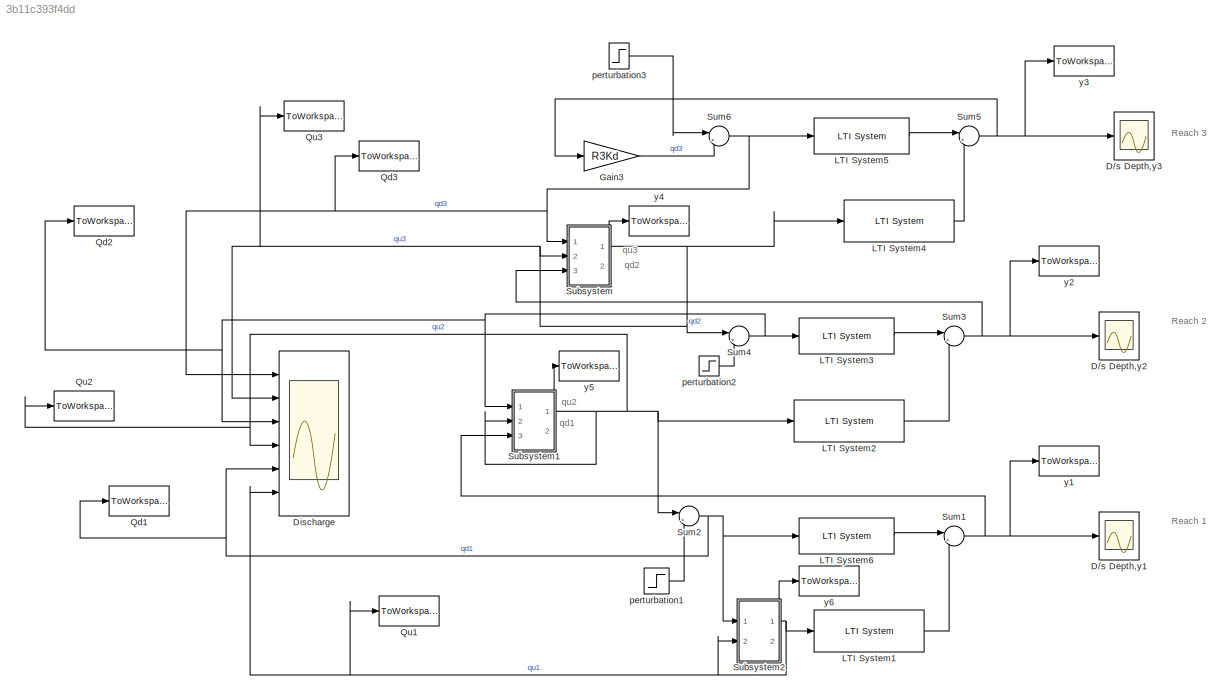
MODEL slx_3b11c393f4dd
KIND model
CONFIG AbsTol = auto
CONFIG EnableMultiTasking = off
CONFIG FixedStep = auto
CONFIG MaxStep = auto
CONFIG MinStep = auto
CONFIG RelTol = 1e-3
CONFIG SampleTimeConstraint = Unconstrained
CONFIG Solver = VariableStepAuto
CONFIG SolverName = VariableStepAuto
CONFIG StartTime = 0.0
CONFIG StopTime = 250000
BLOCK [Scope] D//s Depth,y1
  Floating = off
  NumInputPorts = 1
  Ports = [1]
  ScopeSpecificationString = Simulink.scopes.TimeScopeBlockCfg('CurrentConfiguration', extmgr.ConfigurationSet(extmgr.Configuration('Core','General UI',true),extmgr.Configuration('Core','Source UI',true),extmgr.Configuration('Sources','WiredSimulink',true,'DataLoggingSaveFormat','StructureWithTime','DataLoggingDecimation','1','DataLoggingDecimateData',true),extmgr.Configuration('Visuals','Time Domain',true,'SerializedDisplays...<+1547ch>
BLOCK [Scope] D//s Depth,y2
  Floating = off
  NumInputPorts = 1
  Ports = [1]
  ScopeSpecificationString = Simulink.scopes.TimeScopeBlockCfg('CurrentConfiguration', extmgr.ConfigurationSet(extmgr.Configuration('Core','General UI',true),extmgr.Configuration('Core','Source UI',true),extmgr.Configuration('Sources','WiredSimulink',true,'DataLoggingSaveFormat','StructureWithTime','DataLoggingDecimation','1','DataLoggingDecimateData',true,'DataLoggingVariableName','ScopeData1'),extmgr.Configuration('Visuals'...<+1584ch>
BLOCK [Scope] D//s Depth,y3
  Floating = off
  NumInputPorts = 1
  Ports = [1]
  ScopeSpecificationString = Simulink.scopes.TimeScopeBlockCfg('CurrentConfiguration', extmgr.ConfigurationSet(extmgr.Configuration('Core','General UI',true),extmgr.Configuration('Core','Source UI',true),extmgr.Configuration('Sources','WiredSimulink',true,'DataLoggingSaveFormat','StructureWithTime','DataLoggingDecimation','1','DataLoggingDecimateData',true,'DataLoggingVariableName','ScopeData2'),extmgr.Configuration('Visuals'...<+1586ch>
BLOCK [Scope] Discharge
  Floating = off
  NumInputPorts = 6
  Ports = [6]
  ScopeSpecificationString = Simulink.scopes.TimeScopeBlockCfg('CurrentConfiguration', extmgr.ConfigurationSet(extmgr.Configuration('Core','General UI',true,'DisplayFullSourceName',true),extmgr.Configuration('Core','Source UI',true),extmgr.Configuration('Sources','WiredSimulink',true,'DataLoggingSaveFormat','StructureWithTime','DataLoggingDecimation','1','DataLoggingDecimateData',true,'DataLoggingVariableName','ScopeData1'),e...<+4985ch>
BLOCK [Gain] Gain3
  Gain = R3Kd
BLOCK [Reference] LTI System1  REF=cstblocks/LTI System
  Ports = [1, 1]
  SourceBlock = cstblocks/LTI System
  SourceProductBaseCode = CT
  SourceType = LTI Block
BLOCK [Reference] LTI System2  REF=cstblocks/LTI System
  Ports = [1, 1]
  SourceBlock = cstblocks/LTI System
  SourceProductBaseCode = CT
  SourceType = LTI Block
BLOCK [Reference] LTI System3  REF=cstblocks/LTI System
  Ports = [1, 1]
  SourceBlock = cstblocks/LTI System
  SourceProductBaseCode = CT
  SourceType = LTI Block
BLOCK [Reference] LTI System4  REF=cstblocks/LTI System
  Ports = [1, 1]
  SourceBlock = cstblocks/LTI System
  SourceProductBaseCode = CT
  SourceType = LTI Block
BLOCK [Reference] LTI System5  REF=cstblocks/LTI System
  Ports = [1, 1]
  SourceBlock = cstblocks/LTI System
  SourceProductBaseCode = CT
  SourceType = LTI Block
BLOCK [Reference] LTI System6  REF=cstblocks/LTI System
  Ports = [1, 1]
  SourceBlock = cstblocks/LTI System
  SourceProductBaseCode = CT
  SourceType = LTI Block
BLOCK [ToWorkspace] Qd1
  FixptAsFi = on
  MaxDataPoints = inf
  Ports = [1]
  SampleTime = -1
  SaveFormat = Timeseries
  VariableName = Qd1
BLOCK [ToWorkspace] Qd2
  FixptAsFi = on
  MaxDataPoints = inf
  Ports = [1]
  SampleTime = -1
  SaveFormat = Timeseries
  VariableName = Qd2
BLOCK [ToWorkspace] Qd3
  FixptAsFi = on
  MaxDataPoints = inf
  Ports = [1]
  SampleTime = -1
  SaveFormat = Timeseries
  VariableName = Qd3
BLOCK [ToWorkspace] Qu1
  FixptAsFi = on
  MaxDataPoints = inf
  Ports = [1]
  SampleTime = -1
  SaveFormat = Timeseries
  VariableName = Qu1
BLOCK [ToWorkspace] Qu2
  FixptAsFi = on
  MaxDataPoints = inf
  Ports = [1]
  SampleTime = -1
  SaveFormat = Timeseries
  VariableName = Qu2
BLOCK [ToWorkspace] Qu3
  FixptAsFi = on
  MaxDataPoints = inf
  Ports = [1]
  SampleTime = -1
  SaveFormat = Timeseries
  VariableName = Qu3
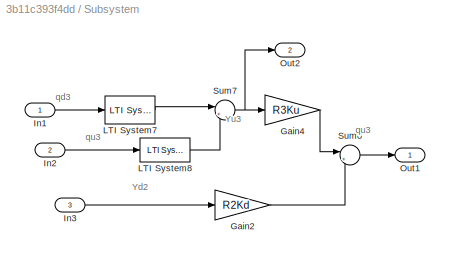
BLOCK [SubSystem] Subsystem
  PortSchema = {"entries":[{"content":{"sides":[{"content":{"connectorIds":["In1","In2","In3"]},"type":"ConnectorPlacement.EquallySpacedRectSide","uuid":"5966c642-27f1-4d1c-9c21-5a17e9a6fd4f"},{"content":{"connectorIds":["Out1"],"side":"RIGHT"},"type":"ConnectorPlacement.EquallySpacedRectSide","uuid":"42c3a355-b1fe-4101-8b09-079b8b81b2d6"},{"content":{"connectorIds":["Out2"],"side":"TOP"},"type":"ConnectorPlacem...<+260ch>
  Ports = [3, 2]
  RequestExecContextInheritance = off
BLOCK [Gain] Subsystem/Gain2
  Gain = R2Kd
BLOCK [Gain] Subsystem/Gain4
  Gain = R3Ku
BLOCK [Inport] Subsystem/In1
BLOCK [Inport] Subsystem/In2
  Port = 2
BLOCK [Inport] Subsystem/In3
  Port = 3
BLOCK [Reference] Subsystem/LTI System7  REF=cstblocks/LTI System
  Ports = [1, 1]
  SourceBlock = cstblocks/LTI System
  SourceProductBaseCode = CT
  SourceType = LTI Block
BLOCK [Reference] Subsystem/LTI System8  REF=cstblocks/LTI System
  Ports = [1, 1]
  SourceBlock = cstblocks/LTI System
  SourceProductBaseCode = CT
  SourceType = LTI Block
BLOCK [Outport] Subsystem/Out1
BLOCK [Outport] Subsystem/Out2
  Port = 2
BLOCK [Sum] Subsystem/Sum7
  Inputs = |++
  Ports = [2, 1]
BLOCK [Sum] Subsystem/Sum8
  Inputs = |++
  Ports = [2, 1]
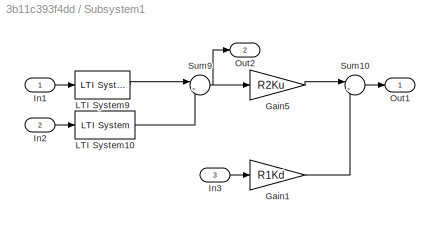
BLOCK [SubSystem] Subsystem1
  PortSchema = {"entries":[{"content":{"sides":[{"content":{"connectorIds":["In1","In2","In3"]},"type":"ConnectorPlacement.EquallySpacedRectSide","uuid":"5966c642-27f1-4d1c-9c21-5a17e9a6fd4f"},{"content":{"connectorIds":["Out1"],"side":"RIGHT"},"type":"ConnectorPlacement.EquallySpacedRectSide","uuid":"42c3a355-b1fe-4101-8b09-079b8b81b2d6"},{"content":{"connectorIds":["Out2"],"side":"TOP"},"type":"ConnectorPlacem...<+260ch>
  Ports = [3, 2]
  RequestExecContextInheritance = off
BLOCK [Gain] Subsystem1/Gain1
  Gain = R1Kd
BLOCK [Gain] Subsystem1/Gain5
  Gain = R2Ku
BLOCK [Inport] Subsystem1/In1
BLOCK [Inport] Subsystem1/In2
  Port = 2
BLOCK [Inport] Subsystem1/In3
  Port = 3
BLOCK [Reference] Subsystem1/LTI System10  REF=cstblocks/LTI System
  Ports = [1, 1]
  SourceBlock = cstblocks/LTI System
  SourceProductBaseCode = CT
  SourceType = LTI Block
BLOCK [Reference] Subsystem1/LTI System9  REF=cstblocks/LTI System
  Ports = [1, 1]
  SourceBlock = cstblocks/LTI System
  SourceProductBaseCode = CT
  SourceType = LTI Block
BLOCK [Outport] Subsystem1/Out1
BLOCK [Outport] Subsystem1/Out2
  Port = 2
BLOCK [Sum] Subsystem1/Sum10
  Inputs = |++
  Ports = [2, 1]
BLOCK [Sum] Subsystem1/Sum9
  Inputs = |++
  Ports = [2, 1]
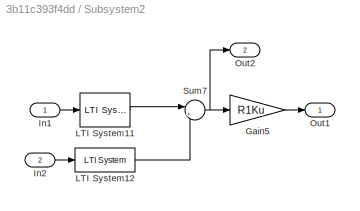
BLOCK [SubSystem] Subsystem2
  PortSchema = {"entries":[{"content":{"sides":[{"content":{"connectorIds":["In1","In2"]},"type":"ConnectorPlacement.EquallySpacedRectSide","uuid":"4285bcff-0b6c-4803-aa7e-52336b14ade4"},{"content":{"connectorIds":["Out1"],"side":"RIGHT"},"type":"ConnectorPlacement.EquallySpacedRectSide","uuid":"ef054825-743c-42b7-be9a-02fce2cfa877"},{"content":{"connectorIds":["Out2"],"side":"TOP"},"type":"ConnectorPlacement.Eq...<+254ch>
  Ports = [2, 2]
  RequestExecContextInheritance = off
BLOCK [Gain] Subsystem2/Gain5
  Gain = R1Ku
BLOCK [Inport] Subsystem2/In1
BLOCK [Inport] Subsystem2/In2
  Port = 2
BLOCK [Reference] Subsystem2/LTI System11  REF=cstblocks/LTI System
  Ports = [1, 1]
  SourceBlock = cstblocks/LTI System
  SourceProductBaseCode = CT
  SourceType = LTI Block
BLOCK [Reference] Subsystem2/LTI System12  REF=cstblocks/LTI System
  Ports = [1, 1]
  SourceBlock = cstblocks/LTI System
  SourceProductBaseCode = CT
  SourceType = LTI Block
BLOCK [Outport] Subsystem2/Out1
BLOCK [Outport] Subsystem2/Out2
  Port = 2
BLOCK [Sum] Subsystem2/Sum7
  Inputs = |++
  Ports = [2, 1]
BLOCK [Sum] Sum1
  Inputs = |++
  Ports = [2, 1]
BLOCK [Sum] Sum2
  Inputs = |++
  Ports = [2, 1]
BLOCK [Sum] Sum3
  Inputs = |++
  Ports = [2, 1]
BLOCK [Sum] Sum4
  Inputs = |++
  Ports = [2, 1]
BLOCK [Sum] Sum5
  Inputs = |++
  Ports = [2, 1]
BLOCK [Sum] Sum6
  Inputs = |++
  Ports = [2, 1]
BLOCK [Step] perturbation1
  After = 0
  SampleTime = 0
  Time = 1200
BLOCK [Step] perturbation2
  SampleTime = 0
  Time = 1200
BLOCK [Step] perturbation3
  After = 0
  SampleTime = 0
  Time = 1200
BLOCK [ToWorkspace] y1
  FixptAsFi = on
  MaxDataPoints = inf
  Ports = [1]
  SampleTime = -1
  SaveFormat = Timeseries
  VariableName = y1d
BLOCK [ToWorkspace] y2
  FixptAsFi = on
  MaxDataPoints = inf
  Ports = [1]
  SampleTime = -1
  SaveFormat = Timeseries
  VariableName = y2d
BLOCK [ToWorkspace] y3
  FixptAsFi = on
  MaxDataPoints = inf
  Ports = [1]
  SampleTime = -1
  SaveFormat = Timeseries
  VariableName = y3d
BLOCK [ToWorkspace] y4
  FixptAsFi = on
  MaxDataPoints = inf
  Ports = [1]
  SampleTime = -1
  SaveFormat = Timeseries
  VariableName = Y3u
BLOCK [ToWorkspace] y5
  FixptAsFi = on
  MaxDataPoints = inf
  Ports = [1]
  SampleTime = -1
  SaveFormat = Timeseries
  VariableName = Y2u
BLOCK [ToWorkspace] y6
  FixptAsFi = on
  MaxDataPoints = inf
  Ports = [1]
  SampleTime = -1
  SaveFormat = Timeseries
  VariableName = Y1u
ANNOTATION (root): Reach 1
ANNOTATION (root): Reach 2
ANNOTATION (root): Reach 3
ANNOTATION (root): qd1
ANNOTATION (root): qd2
ANNOTATION (root): qu2
ANNOTATION (root): qu3
ANNOTATION Subsystem: Yd2
ANNOTATION Subsystem: Yu3
ANNOTATION Subsystem: qd3
ANNOTATION Subsystem: qu3
LINE Gain3:1 -> Sum6:2
LINE LTI System1:1 -> Sum1:2
LINE LTI System2:1 -> Sum3:2
LINE LTI System3:1 -> Sum3:1
LINE LTI System4:1 -> Sum5:2
LINE LTI System5:1 -> Sum5:1
LINE LTI System6:1 -> Sum1:1
LINE Subsystem/Gain2:1 -> Subsystem/Sum8:2
LINE Subsystem/Gain4:1 -> Subsystem/Sum8:1
LINE Subsystem/In1:1 -> Subsystem/LTI System7:1
LINE Subsystem/In2:1 -> Subsystem/LTI System8:1
LINE Subsystem/In3:1 -> Subsystem/Gain2:1
LINE Subsystem/LTI System7:1 -> Subsystem/Sum7:1
LINE Subsystem/LTI System8:1 -> Subsystem/Sum7:2
NET Subsystem/Sum7:1 -> Subsystem/Gain4:1, Subsystem/Out2:1
LINE Subsystem/Sum8:1 -> Subsystem/Out1:1
LINE Subsystem1/Gain1:1 -> Subsystem1/Sum10:2
LINE Subsystem1/Gain5:1 -> Subsystem1/Sum10:1
LINE Subsystem1/In1:1 -> Subsystem1/LTI System9:1
LINE Subsystem1/In2:1 -> Subsystem1/LTI System10:1
LINE Subsystem1/In3:1 -> Subsystem1/Gain1:1
LINE Subsystem1/LTI System10:1 -> Subsystem1/Sum9:2
LINE Subsystem1/LTI System9:1 -> Subsystem1/Sum9:1
LINE Subsystem1/Sum10:1 -> Subsystem1/Out1:1
NET Subsystem1/Sum9:1 -> Subsystem1/Gain5:1, Subsystem1/Out2:1
NET Subsystem1:1 -> Discharge:4, LTI System2:1, Qu2:1, Subsystem1:2, Sum2:1
LINE Subsystem1:2 -> y5:1
LINE Subsystem2/Gain5:1 -> Subsystem2/Out1:1
LINE Subsystem2/In1:1 -> Subsystem2/LTI System11:1
LINE Subsystem2/In2:1 -> Subsystem2/LTI System12:1
LINE Subsystem2/LTI System11:1 -> Subsystem2/Sum7:1
LINE Subsystem2/LTI System12:1 -> Subsystem2/Sum7:2
NET Subsystem2/Sum7:1 -> Subsystem2/Gain5:1, Subsystem2/Out2:1
NET Subsystem2:1 -> Discharge:6, LTI System1:1, Qu1:1, Subsystem2:2
LINE Subsystem2:2 -> y6:1
NET Subsystem:1 -> Discharge:2, LTI System4:1, Qu3:1, Subsystem:2, Sum4:1
LINE Subsystem:2 -> y4:1
NET Sum1:1 -> D//s Depth,y1:1, Subsystem1:3, y1:1
NET Sum2:1 -> Discharge:5, LTI System6:1, Qd1:1, Subsystem2:1
NET Sum3:1 -> D//s Depth,y2:1, Subsystem:3, y2:1
NET Sum4:1 -> Discharge:3, LTI System3:1, Qd2:1, Subsystem1:1
NET Sum5:1 -> D//s Depth,y3:1, Gain3:1, y3:1
NET Sum6:1 -> Discharge:1, LTI System5:1, Qd3:1, Subsystem:1
LINE perturbation1:1 -> Sum2:2
LINE perturbation2:1 -> Sum4:2
LINE perturbation3:1 -> Sum6:1
note: NET lines group one-source signal fan-out (src -> all destinations, sorted); 1:1 wires keep LINE
